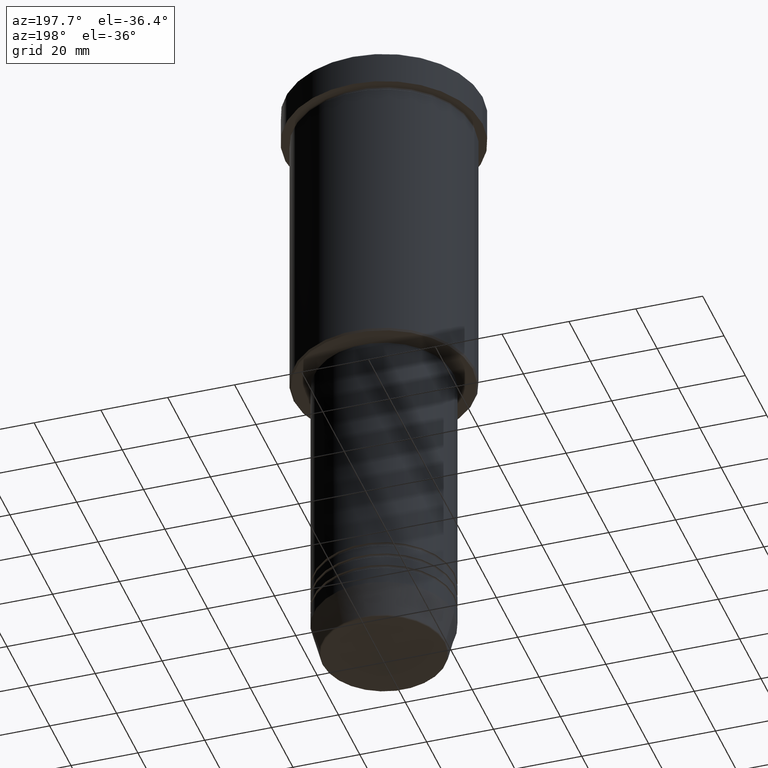
[diagram: clean part render]
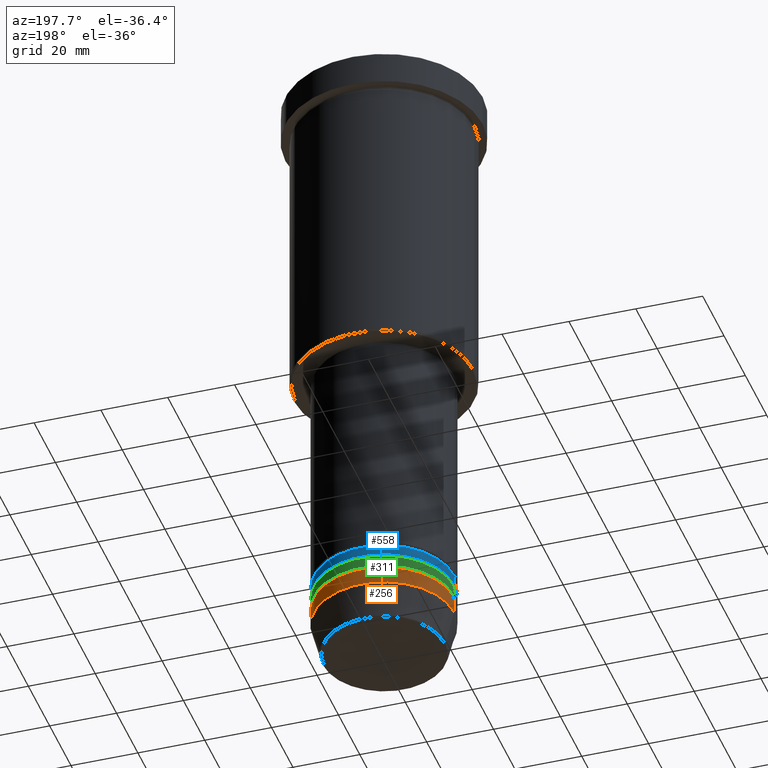
[diagram: same view with three faces highlighted in distinct colors, each labeled with its STEP entity id]
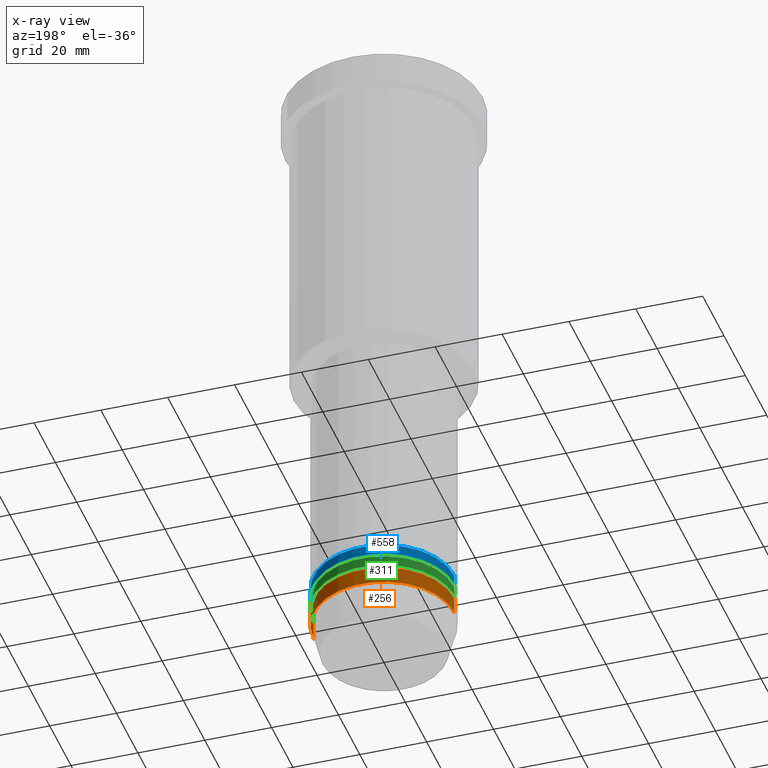
[diagram: x-ray of the same camera — body ghosted, the three highlighted faces saturated]
A machine part, auxiliary view with three faces highlighted in distinct colors.
The next image is the same camera in x-ray (body ghosted, the three faces saturated) — at least one of them is partly hidden behind the body in this view.
Their STEP definitions:

[orange] entity #256 — the highlighted cylindrical surface (partial cylindrical patch) has radius 21 mm, axis along (-0, -0, 1).
#6 = VERTEX_POINT ( 'NONE', #522 ) ;
#31 = ORIENTED_EDGE ( 'NONE', *, *, #1037, .F. ) ;
#37 = CARTESIAN_POINT ( 'NONE',  ( -21.00000000000000000, 2.571758278209441661E-15, 0.000000000000000000 ) ) ;
#66 = VERTEX_POINT ( 'NONE', #988 ) ;
#78 = ORIENTED_EDGE ( 'NONE', *, *, #781, .T. ) ;
#137 = CARTESIAN_POINT ( 'NONE',  ( 0.000000000000000000, 0.000000000000000000, -181.0000000000000000 ) ) ;
#203 = LINE ( 'NONE', #561, #529 ) ;
#252 = EDGE_CURVE ( 'NONE', #6, #1008, #203, .T. ) ;
#256 = ADVANCED_FACE ( 'NONE', ( #395 ), #273, .T. ) ;
#268 = CIRCLE ( 'NONE', #369, 21.00000000000000000 ) ;
#273 = CYLINDRICAL_SURFACE ( 'NONE', #827, 21.00000000000000000 ) ;
#303 = DIRECTION ( 'NONE',  ( -0.000000000000000000, -0.000000000000000000, 1.000000000000000000 ) ) ;
#319 = DIRECTION ( 'NONE',  ( -0.000000000000000000, -0.000000000000000000, 1.000000000000000000 ) ) ;
#339 = EDGE_CURVE ( 'NONE', #6, #402, #706, .T. ) ;
#369 = AXIS2_PLACEMENT_3D ( 'NONE', #398, #303, #404 ) ;
#381 = CARTESIAN_POINT ( 'NONE',  ( 0.000000000000000000, 0.000000000000000000, 0.000000000000000000 ) ) ;
#395 = FACE_OUTER_BOUND ( 'NONE', #883, .T. ) ;
#398 = CARTESIAN_POINT ( 'NONE',  ( 0.000000000000000000, 0.000000000000000000, -176.0000000000000284 ) ) ;
#402 = VERTEX_POINT ( 'NONE', #846 ) ;
#404 = DIRECTION ( 'NONE',  ( 1.000000000000000000, 0.000000000000000000, 0.000000000000000000 ) ) ;
#408 = DIRECTION ( 'NONE',  ( 1.000000000000000000, 0.000000000000000000, 0.000000000000000000 ) ) ;
#480 = DIRECTION ( 'NONE',  ( -0.000000000000000000, -0.000000000000000000, 1.000000000000000000 ) ) ;
#495 = AXIS2_PLACEMENT_3D ( 'NONE', #137, #319, #408 ) ;
#522 = CARTESIAN_POINT ( 'NONE',  ( 21.00000000000000000, 0.000000000000000000, -181.0000000000000000 ) ) ;
#529 = VECTOR ( 'NONE', #480, 1000.000000000000000 ) ;
#561 = CARTESIAN_POINT ( 'NONE',  ( 21.00000000000000000, 0.000000000000000000, 0.000000000000000000 ) ) ;
#593 = CARTESIAN_POINT ( 'NONE',  ( 21.00000000000000000, 0.000000000000000000, -176.0000000000000284 ) ) ;
#626 = DIRECTION ( 'NONE',  ( -0.000000000000000000, -0.000000000000000000, 1.000000000000000000 ) ) ;
#706 = CIRCLE ( 'NONE', #495, 21.00000000000000000 ) ;
#734 = LINE ( 'NONE', #37, #908 ) ;
#781 = EDGE_CURVE ( 'NONE', #402, #66, #734, .T. ) ;
#789 = ORIENTED_EDGE ( 'NONE', *, *, #252, .F. ) ;
#827 = AXIS2_PLACEMENT_3D ( 'NONE', #381, #626, #1086 ) ;
#846 = CARTESIAN_POINT ( 'NONE',  ( -21.00000000000000000, 2.571758278209441661E-15, -181.0000000000000000 ) ) ;
#883 = EDGE_LOOP ( 'NONE', ( #943, #78, #31, #789 ) ) ;
#908 = VECTOR ( 'NONE', #936, 1000.000000000000000 ) ;
#936 = DIRECTION ( 'NONE',  ( -0.000000000000000000, -0.000000000000000000, 1.000000000000000000 ) ) ;
#943 = ORIENTED_EDGE ( 'NONE', *, *, #339, .T. ) ;
#988 = CARTESIAN_POINT ( 'NONE',  ( -21.00000000000000000, 2.571758278209441661E-15, -176.0000000000000284 ) ) ;
#1008 = VERTEX_POINT ( 'NONE', #593 ) ;
#1037 = EDGE_CURVE ( 'NONE', #1008, #66, #268, .T. ) ;
#1086 = DIRECTION ( 'NONE',  ( 1.000000000000000000, 0.000000000000000000, 0.000000000000000000 ) ) ;

[blue] entity #558 — the highlighted cylindrical surface (partial cylindrical patch) has radius 21 mm, axis along (-0, -0, 1).
#34 = VECTOR ( 'NONE', #1003, 1000.000000000000000 ) ;
#61 = CARTESIAN_POINT ( 'NONE',  ( -21.00000000000000355, 2.571758278209442056E-15, -170.9999999999999432 ) ) ;
#63 = FACE_OUTER_BOUND ( 'NONE', #938, .T. ) ;
#82 = EDGE_CURVE ( 'NONE', #598, #1124, #982, .T. ) ;
#184 = CARTESIAN_POINT ( 'NONE',  ( 21.00000000000000000, 0.000000000000000000, -167.9999999999998863 ) ) ;
#193 = CARTESIAN_POINT ( 'NONE',  ( -21.00000000000000355, 2.571758278209442056E-15, 0.000000000000000000 ) ) ;
#258 = CARTESIAN_POINT ( 'NONE',  ( 0.000000000000000000, 0.000000000000000000, -170.9999999999999432 ) ) ;
#262 = DIRECTION ( 'NONE',  ( -0.000000000000000000, -0.000000000000000000, 1.000000000000000000 ) ) ;
#264 = AXIS2_PLACEMENT_3D ( 'NONE', #258, #262, #1154 ) ;
#306 = AXIS2_PLACEMENT_3D ( 'NONE', #438, #778, #1153 ) ;
#323 = EDGE_CURVE ( 'NONE', #598, #849, #866, .T. ) ;
#410 = ORIENTED_EDGE ( 'NONE', *, *, #82, .T. ) ;
#438 = CARTESIAN_POINT ( 'NONE',  ( 0.000000000000000000, 0.000000000000000000, 0.000000000000000000 ) ) ;
#472 = VERTEX_POINT ( 'NONE', #893 ) ;
#491 = ORIENTED_EDGE ( 'NONE', *, *, #915, .F. ) ;
#538 = CARTESIAN_POINT ( 'NONE',  ( 21.00000000000000355, 0.000000000000000000, -170.9999999999999432 ) ) ;
#558 = ADVANCED_FACE ( 'NONE', ( #63 ), #609, .T. ) ;
#568 = CIRCLE ( 'NONE', #681, 21.00000000000000000 ) ;
#598 = VERTEX_POINT ( 'NONE', #538 ) ;
#609 = CYLINDRICAL_SURFACE ( 'NONE', #306, 21.00000000000000355 ) ;
#628 = ORIENTED_EDGE ( 'NONE', *, *, #715, .T. ) ;
#648 = CARTESIAN_POINT ( 'NONE',  ( 0.000000000000000000, 0.000000000000000000, -167.9999999999998863 ) ) ;
#674 = CARTESIAN_POINT ( 'NONE',  ( 21.00000000000000355, 0.000000000000000000, 0.000000000000000000 ) ) ;
#681 = AXIS2_PLACEMENT_3D ( 'NONE', #648, #1172, #1001 ) ;
#715 = EDGE_CURVE ( 'NONE', #1124, #472, #1181, .T. ) ;
#778 = DIRECTION ( 'NONE',  ( -0.000000000000000000, -0.000000000000000000, 1.000000000000000000 ) ) ;
#849 = VERTEX_POINT ( 'NONE', #184 ) ;
#866 = LINE ( 'NONE', #674, #966 ) ;
#893 = CARTESIAN_POINT ( 'NONE',  ( -21.00000000000000000, 2.571758278209441661E-15, -167.9999999999998863 ) ) ;
#915 = EDGE_CURVE ( 'NONE', #849, #472, #568, .T. ) ;
#932 = ORIENTED_EDGE ( 'NONE', *, *, #323, .F. ) ;
#938 = EDGE_LOOP ( 'NONE', ( #410, #628, #491, #932 ) ) ;
#966 = VECTOR ( 'NONE', #1108, 1000.000000000000000 ) ;
#982 = CIRCLE ( 'NONE', #264, 21.00000000000000355 ) ;
#1001 = DIRECTION ( 'NONE',  ( 1.000000000000000000, 0.000000000000000000, 0.000000000000000000 ) ) ;
#1003 = DIRECTION ( 'NONE',  ( -0.000000000000000000, -0.000000000000000000, 1.000000000000000000 ) ) ;
#1108 = DIRECTION ( 'NONE',  ( -0.000000000000000000, -0.000000000000000000, 1.000000000000000000 ) ) ;
#1124 = VERTEX_POINT ( 'NONE', #61 ) ;
#1153 = DIRECTION ( 'NONE',  ( 1.000000000000000000, 0.000000000000000000, 0.000000000000000000 ) ) ;
#1154 = DIRECTION ( 'NONE',  ( 1.000000000000000000, 0.000000000000000000, 0.000000000000000000 ) ) ;
#1172 = DIRECTION ( 'NONE',  ( -0.000000000000000000, -0.000000000000000000, 1.000000000000000000 ) ) ;
#1181 = LINE ( 'NONE', #193, #34 ) ;

[green] entity #311 — the highlighted cylindrical surface (partial cylindrical patch) has radius 21 mm, axis along (-0, -0, 1).
#3 = DIRECTION ( 'NONE',  ( 1.000000000000000000, 0.000000000000000000, 0.000000000000000000 ) ) ;
#23 = CARTESIAN_POINT ( 'NONE',  ( 0.000000000000000000, 0.000000000000000000, 0.000000000000000000 ) ) ;
#92 = LINE ( 'NONE', #375, #211 ) ;
#93 = CIRCLE ( 'NONE', #910, 21.00000000000000000 ) ;
#179 = EDGE_CURVE ( 'NONE', #751, #944, #198, .T. ) ;
#190 = CARTESIAN_POINT ( 'NONE',  ( 0.000000000000000000, 0.000000000000000000, -171.9999999999999147 ) ) ;
#198 = LINE ( 'NONE', #390, #981 ) ;
#201 = CARTESIAN_POINT ( 'NONE',  ( -21.00000000000000000, 2.571758278209441661E-15, -174.9999999999998863 ) ) ;
#211 = VECTOR ( 'NONE', #244, 1000.000000000000000 ) ;
#213 = ORIENTED_EDGE ( 'NONE', *, *, #179, .F. ) ;
#219 = EDGE_LOOP ( 'NONE', ( #465, #421, #490, #213 ) ) ;
#244 = DIRECTION ( 'NONE',  ( -0.000000000000000000, -0.000000000000000000, 1.000000000000000000 ) ) ;
#307 = CYLINDRICAL_SURFACE ( 'NONE', #1138, 21.00000000000000000 ) ;
#311 = ADVANCED_FACE ( 'NONE', ( #413 ), #307, .T. ) ;
#375 = CARTESIAN_POINT ( 'NONE',  ( -21.00000000000000000, 2.571758278209441661E-15, 0.000000000000000000 ) ) ;
#390 = CARTESIAN_POINT ( 'NONE',  ( 21.00000000000000000, 0.000000000000000000, 0.000000000000000000 ) ) ;
#400 = DIRECTION ( 'NONE',  ( 1.000000000000000000, 0.000000000000000000, 0.000000000000000000 ) ) ;
#412 = CARTESIAN_POINT ( 'NONE',  ( 21.00000000000000000, 0.000000000000000000, -174.9999999999998863 ) ) ;
#413 = FACE_OUTER_BOUND ( 'NONE', #219, .T. ) ;
#421 = ORIENTED_EDGE ( 'NONE', *, *, #1104, .T. ) ;
#465 = ORIENTED_EDGE ( 'NONE', *, *, #1017, .T. ) ;
#490 = ORIENTED_EDGE ( 'NONE', *, *, #920, .F. ) ;
#504 = CARTESIAN_POINT ( 'NONE',  ( 0.000000000000000000, 0.000000000000000000, -174.9999999999998863 ) ) ;
#650 = DIRECTION ( 'NONE',  ( -0.000000000000000000, -0.000000000000000000, 1.000000000000000000 ) ) ;
#751 = VERTEX_POINT ( 'NONE', #412 ) ;
#771 = CARTESIAN_POINT ( 'NONE',  ( -21.00000000000000000, 2.571758278209441661E-15, -171.9999999999999147 ) ) ;
#819 = DIRECTION ( 'NONE',  ( -0.000000000000000000, -0.000000000000000000, 1.000000000000000000 ) ) ;
#838 = DIRECTION ( 'NONE',  ( 1.000000000000000000, 0.000000000000000000, 0.000000000000000000 ) ) ;
#844 = DIRECTION ( 'NONE',  ( -0.000000000000000000, -0.000000000000000000, 1.000000000000000000 ) ) ;
#857 = VERTEX_POINT ( 'NONE', #201 ) ;
#910 = AXIS2_PLACEMENT_3D ( 'NONE', #504, #844, #838 ) ;
#920 = EDGE_CURVE ( 'NONE', #944, #1171, #1026, .T. ) ;
#944 = VERTEX_POINT ( 'NONE', #1009 ) ;
#981 = VECTOR ( 'NONE', #650, 1000.000000000000000 ) ;
#1009 = CARTESIAN_POINT ( 'NONE',  ( 21.00000000000000000, 0.000000000000000000, -171.9999999999999147 ) ) ;
#1017 = EDGE_CURVE ( 'NONE', #751, #857, #93, .T. ) ;
#1019 = DIRECTION ( 'NONE',  ( -0.000000000000000000, -0.000000000000000000, 1.000000000000000000 ) ) ;
#1026 = CIRCLE ( 'NONE', #1101, 21.00000000000000000 ) ;
#1101 = AXIS2_PLACEMENT_3D ( 'NONE', #190, #819, #3 ) ;
#1104 = EDGE_CURVE ( 'NONE', #857, #1171, #92, .T. ) ;
#1138 = AXIS2_PLACEMENT_3D ( 'NONE', #23, #1019, #400 ) ;
#1171 = VERTEX_POINT ( 'NONE', #771 ) ;